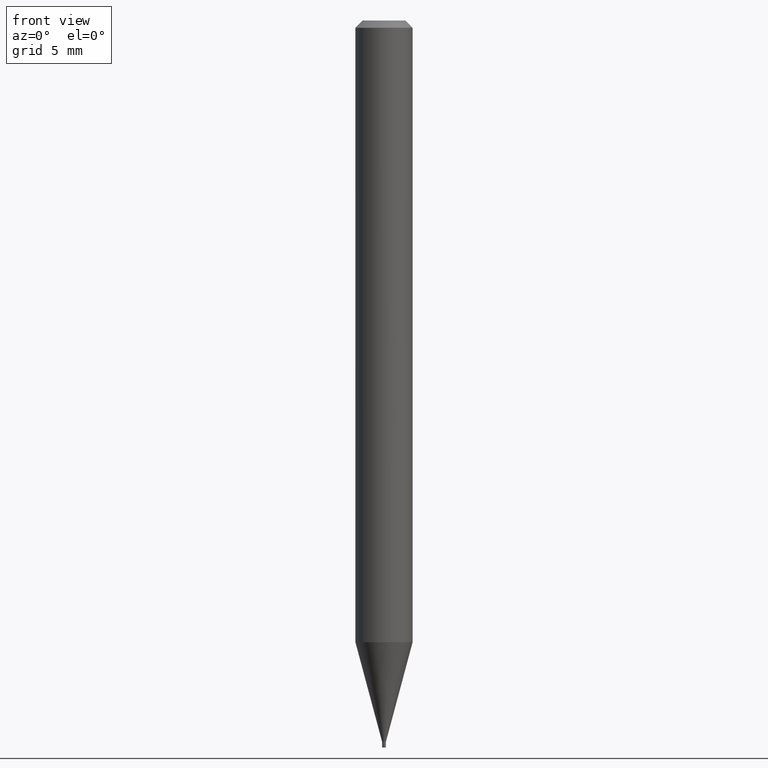
[diagram: clean part render]
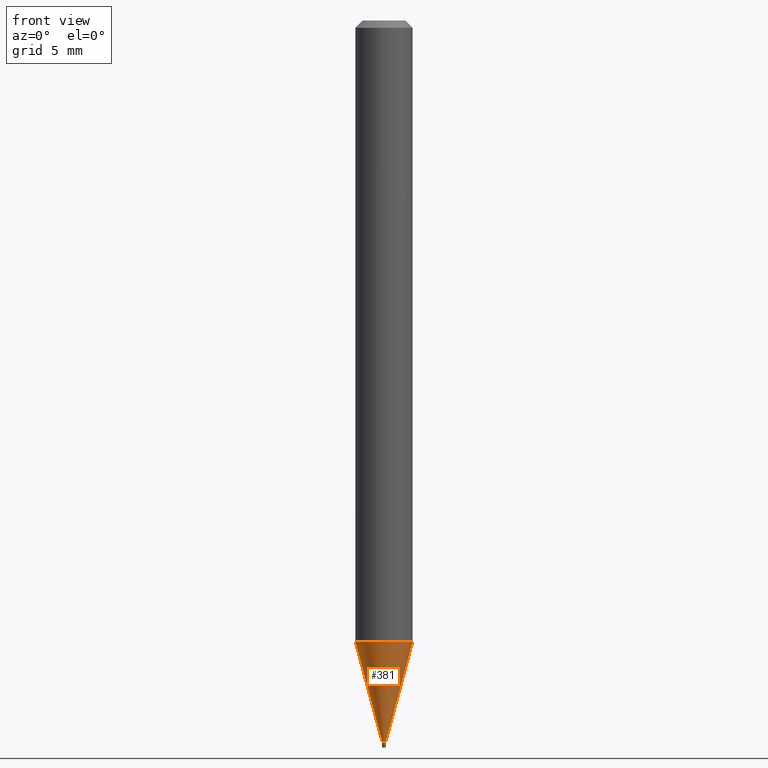
[diagram: same view with one face highlighted and labeled with its STEP entity id]
A machine part, front view. The second image highlights one B-rep face of the part: STEP entity #381.
In plain terms, the highlighted conical surface has half-angle 15 deg.
Its self-contained STEP definition (entity closure, byte-faithful):
#36 = ORIENTED_EDGE ( 'NONE', *, *, #412, .F. ) ;
#72 = CONICAL_SURFACE ( 'NONE', #413, 0.003949999999999924058, 0.2617993877991500740 ) ;
#74 = CARTESIAN_POINT ( 'NONE',  ( -0.05904999999999999832, -4.058472788161738088E-15, -1.282564000502955048 ) ) ;
#80 = CARTESIAN_POINT ( 'NONE',  ( 3.639346677364720273E-29, -5.196022528466369115E-15, -1.488199999999999967 ) ) ;
#81 = AXIS2_PLACEMENT_3D ( 'NONE', #263, #404, #363 ) ;
#82 = VERTEX_POINT ( 'NONE', #74 ) ;
#115 = VECTOR ( 'NONE', #256, 39.37007874015747433 ) ;
#123 = EDGE_CURVE ( 'NONE', #278, #300, #170, .T. ) ;
#124 = CARTESIAN_POINT ( 'NONE',  ( 3.639346677364720273E-29, -5.196022528466369115E-15, -1.488199999999999967 ) ) ;
#138 = VECTOR ( 'NONE', #273, 39.37007874015747433 ) ;
#148 = CIRCLE ( 'NONE', #435, 0.003949999999999924058 ) ;
#154 = DIRECTION ( 'NONE',  ( 1.000000000000000000, -6.982962677686381095E-15, 0.000000000000000000 ) ) ;
#157 = DIRECTION ( 'NONE',  ( -2.445468806185136597E-29, 3.491481338843145583E-15, 1.000000000000000000 ) ) ;
#161 = CARTESIAN_POINT ( 'NONE',  ( -0.003949999999999924058, -5.167956090403845093E-15, -1.488199999999999967 ) ) ;
#170 = LINE ( 'NONE', #418, #138 ) ;
#214 = EDGE_CURVE ( 'NONE', #82, #300, #411, .T. ) ;
#221 = DIRECTION ( 'NONE',  ( -2.445468806185136597E-29, 3.491481338843145583E-15, 1.000000000000000000 ) ) ;
#223 = LINE ( 'NONE', #161, #115 ) ;
#243 = CARTESIAN_POINT ( 'NONE',  ( 0.05904999999999999832, -4.890392219745453290E-15, -1.282564000502955048 ) ) ;
#246 = EDGE_LOOP ( 'NONE', ( #36, #331, #266, #380 ) ) ;
#256 = DIRECTION ( 'NONE',  ( -0.2588190451025213501, 5.211531920934551042E-15, 0.9659258262890682012 ) ) ;
#263 = CARTESIAN_POINT ( 'NONE',  ( 3.136470255165994153E-29, -4.478048273628078370E-15, -1.282564000502955048 ) ) ;
#266 = ORIENTED_EDGE ( 'NONE', *, *, #123, .T. ) ;
#273 = DIRECTION ( 'NONE',  ( 0.2588190451025213501, 1.565188264969621968E-15, 0.9659258262890682012 ) ) ;
#278 = VERTEX_POINT ( 'NONE', #456 ) ;
#300 = VERTEX_POINT ( 'NONE', #243 ) ;
#331 = ORIENTED_EDGE ( 'NONE', *, *, #356, .T. ) ;
#333 = FACE_OUTER_BOUND ( 'NONE', #246, .T. ) ;
#334 = DIRECTION ( 'NONE',  ( 1.000000000000000000, -6.982962677686381095E-15, 0.000000000000000000 ) ) ;
#356 = EDGE_CURVE ( 'NONE', #407, #278, #148, .T. ) ;
#363 = DIRECTION ( 'NONE',  ( 1.000000000000000000, -6.982962677686273021E-15, 0.000000000000000000 ) ) ;
#369 = CARTESIAN_POINT ( 'NONE',  ( -0.003949999999999924058, -4.613214439282791985E-15, -1.488199999999999967 ) ) ;
#380 = ORIENTED_EDGE ( 'NONE', *, *, #214, .F. ) ;
#381 = ADVANCED_FACE ( 'NONE', ( #333 ), #72, .T. ) ;
#404 = DIRECTION ( 'NONE',  ( -2.445468806185136597E-29, 3.491481338843145583E-15, 1.000000000000000000 ) ) ;
#407 = VERTEX_POINT ( 'NONE', #369 ) ;
#411 = CIRCLE ( 'NONE', #81, 0.05904999999999999832 ) ;
#412 = EDGE_CURVE ( 'NONE', #407, #82, #223, .T. ) ;
#413 = AXIS2_PLACEMENT_3D ( 'NONE', #124, #157, #334 ) ;
#418 = CARTESIAN_POINT ( 'NONE',  ( 0.003949999999999924058, -5.223605231043229660E-15, -1.488199999999999967 ) ) ;
#435 = AXIS2_PLACEMENT_3D ( 'NONE', #80, #221, #154 ) ;
#456 = CARTESIAN_POINT ( 'NONE',  ( 0.003949999999999924058, -5.223605231043229660E-15, -1.488199999999999967 ) ) ;